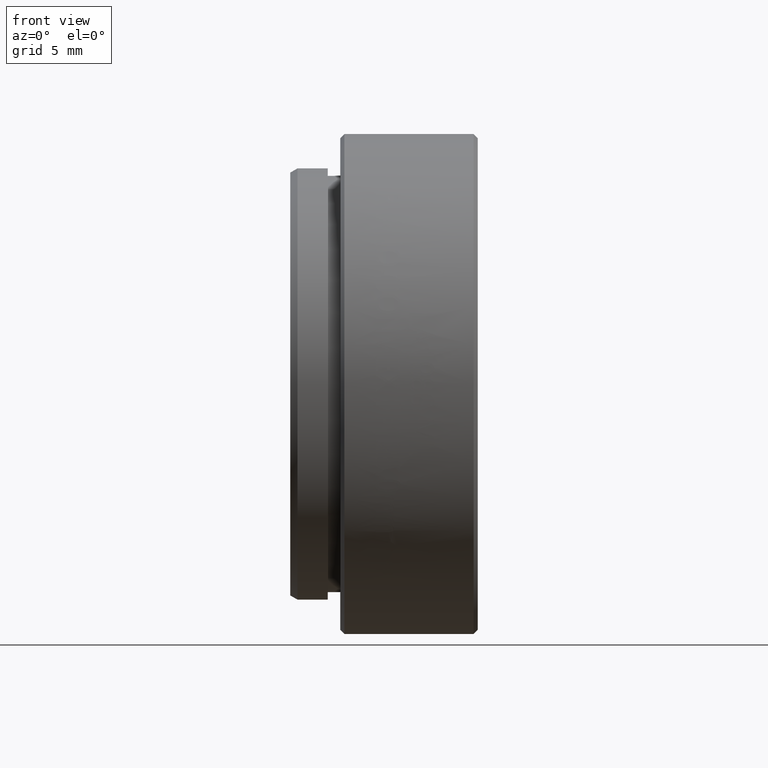
[diagram: clean part render]
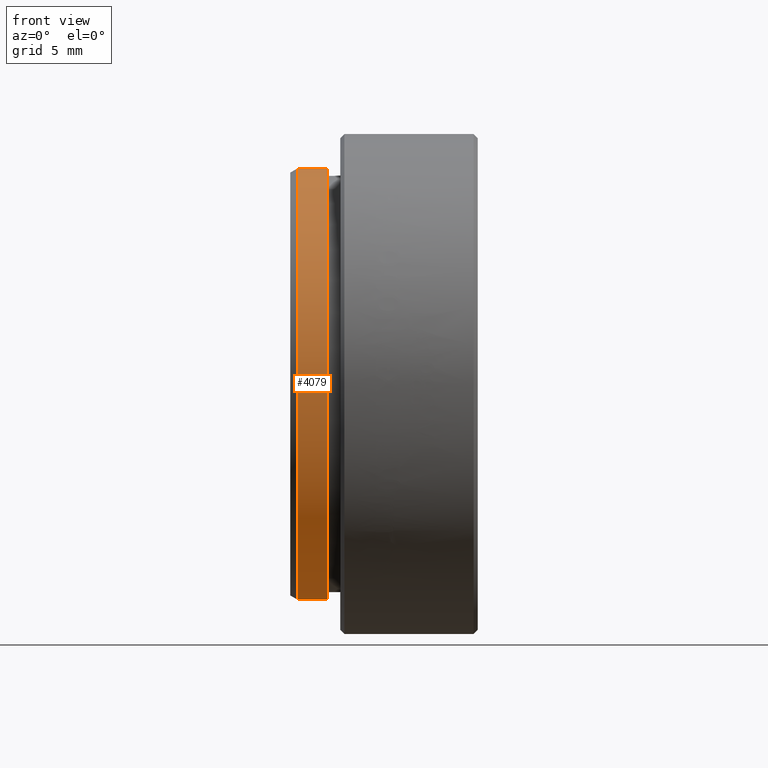
[diagram: same view with one face highlighted and labeled with its STEP entity id]
A machine part, front view. The second image highlights one B-rep face of the part: STEP entity #4079.
In plain terms, the highlighted cylindrical surface (partial cylindrical patch) has radius 13.1445 mm, axis along (1, -0, -0).
Its self-contained STEP definition (entity closure, byte-faithful):
#91 = DIRECTION ( 'NONE',  ( 1.000000000000000000, -0.0000000000000000000, -0.0000000000000000000 ) ) ;
#152 = ORIENTED_EDGE ( 'NONE', *, *, #2534, .T. ) ;
#840 = CIRCLE ( 'NONE', #8290, 13.14449999999999719 ) ;
#957 = DIRECTION ( 'NONE',  ( 1.000000000000000000, -0.0000000000000000000, -0.0000000000000000000 ) ) ;
#988 = EDGE_LOOP ( 'NONE', ( #3306, #152, #6490, #6776 ) ) ;
#1159 = DIRECTION ( 'NONE',  ( 1.000000000000000000, -0.0000000000000000000, -0.0000000000000000000 ) ) ;
#1724 = CARTESIAN_POINT ( 'NONE',  ( -10.99005909487751076, 0.0000000000000000000, 0.0000000000000000000 ) ) ;
#2069 = VERTEX_POINT ( 'NONE', #4733 ) ;
#2201 = FACE_OUTER_BOUND ( 'NONE', #988, .T. ) ;
#2534 = EDGE_CURVE ( 'NONE', #3013, #5400, #840, .T. ) ;
#2565 = DIRECTION ( 'NONE',  ( 0.0000000000000000000, 0.0000000000000000000, 1.000000000000000000 ) ) ;
#3013 = VERTEX_POINT ( 'NONE', #6139 ) ;
#3162 = DIRECTION ( 'NONE',  ( 0.0000000000000000000, 0.0000000000000000000, -1.000000000000000000 ) ) ;
#3306 = ORIENTED_EDGE ( 'NONE', *, *, #9503, .F. ) ;
#3535 = AXIS2_PLACEMENT_3D ( 'NONE', #10086, #7812, #3162 ) ;
#3853 = CIRCLE ( 'NONE', #5108, 13.14449999999999896 ) ;
#4079 = ADVANCED_FACE ( 'NONE', ( #2201 ), #7169, .T. ) ;
#4622 = CARTESIAN_POINT ( 'NONE',  ( -9.144000000000001904, 0.0000000000000000000, -13.14449999999999896 ) ) ;
#4733 = CARTESIAN_POINT ( 'NONE',  ( -9.144000000000001904, 1.609736985139238439E-15, 13.14450000000000074 ) ) ;
#5084 = VECTOR ( 'NONE', #9972, 1000.000000000000000 ) ;
#5108 = AXIS2_PLACEMENT_3D ( 'NONE', #9039, #1159, #9606 ) ;
#5248 = EDGE_CURVE ( 'NONE', #5400, #8310, #6421, .T. ) ;
#5400 = VERTEX_POINT ( 'NONE', #9440 ) ;
#6139 = CARTESIAN_POINT ( 'NONE',  ( -10.99005909487751076, 1.609736985139238045E-15, 13.14449999999999719 ) ) ;
#6421 = LINE ( 'NONE', #8482, #5084 ) ;
#6490 = ORIENTED_EDGE ( 'NONE', *, *, #5248, .T. ) ;
#6776 = ORIENTED_EDGE ( 'NONE', *, *, #7776, .F. ) ;
#7169 = CYLINDRICAL_SURFACE ( 'NONE', #3535, 13.14449999999999719 ) ;
#7776 = EDGE_CURVE ( 'NONE', #2069, #8310, #3853, .T. ) ;
#7812 = DIRECTION ( 'NONE',  ( 1.000000000000000000, -0.0000000000000000000, -0.0000000000000000000 ) ) ;
#7931 = CARTESIAN_POINT ( 'NONE',  ( 0.0000000000000000000, 1.609736985139238045E-15, 13.14449999999999719 ) ) ;
#8212 = VECTOR ( 'NONE', #91, 1000.000000000000000 ) ;
#8290 = AXIS2_PLACEMENT_3D ( 'NONE', #1724, #957, #2565 ) ;
#8310 = VERTEX_POINT ( 'NONE', #4622 ) ;
#8455 = LINE ( 'NONE', #7931, #8212 ) ;
#8482 = CARTESIAN_POINT ( 'NONE',  ( 0.0000000000000000000, 0.0000000000000000000, -13.14449999999999719 ) ) ;
#9039 = CARTESIAN_POINT ( 'NONE',  ( -9.144000000000001904, 0.0000000000000000000, 0.0000000000000000000 ) ) ;
#9440 = CARTESIAN_POINT ( 'NONE',  ( -10.99005909487751076, 0.0000000000000000000, -13.14449999999999719 ) ) ;
#9503 = EDGE_CURVE ( 'NONE', #3013, #2069, #8455, .T. ) ;
#9606 = DIRECTION ( 'NONE',  ( 0.0000000000000000000, 0.0000000000000000000, -1.000000000000000000 ) ) ;
#9972 = DIRECTION ( 'NONE',  ( 1.000000000000000000, -0.0000000000000000000, -0.0000000000000000000 ) ) ;
#10086 = CARTESIAN_POINT ( 'NONE',  ( 0.0000000000000000000, 0.0000000000000000000, 0.0000000000000000000 ) ) ;